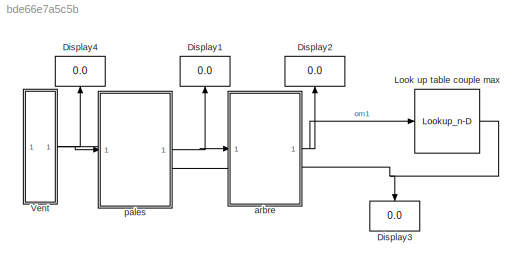
MODEL slx_bde66e7a5c5b
KIND model
CONFIG AbsTol = auto
CONFIG EnableMultiTasking = off
CONFIG FixedStep = auto
CONFIG MaxStep = auto
CONFIG MinStep = auto
CONFIG RelTol = 1e-3
CONFIG SampleTimeConstraint = Unconstrained
CONFIG SolverName = VariableStepAuto
CONFIG StartTime = 0.0
CONFIG StopTime = 10
BLOCK [Display] Display1
  Decimation = 1
  NameLocation = right
BLOCK [Display] Display2
  Decimation = 1
  NameLocation = right
BLOCK [Display] Display3
  Decimation = 1
  NameLocation = left
BLOCK [Display] Display4
  Decimation = 1
  NameLocation = right
BLOCK [Lookup_n-D] Look up table couple max
  BreakpointsForDimension1 = temp
  InputPortMap = u0
  InternalRulePriority = Speed
  NameLocation = top
  NumberOfTableDimensions = 1
  RndMeth = Simplest
  Table = cmaxfit
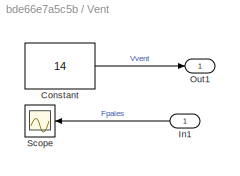
BLOCK [SubSystem] Vent
  PortSchema = {"entries":[{"content":{"sides":[{"content":{"connectorIds":[]},"type":"ConnectorPlacement.EquallySpacedRectSide","uuid":"be9e5db0-62db-41cd-9655-d6d790779573"},{"content":{"connectorIds":["Out1","In1"],"side":"RIGHT"},"type":"ConnectorPlacement.EquallySpacedRectSide","uuid":"b5e788b3-1e5f-4899-a162-7a564b67bc63"},{"content":{"connectorIds":[],"side":"TOP"},"type":"ConnectorPlacement.EquallySpaced...<+241ch>
BLOCK [Constant] Vent/Constant
  Value = 14
BLOCK [Inport] Vent/In1
  IconDisplay = Signal name
BLOCK [Outport] Vent/Out1
  IconDisplay = Signal name
BLOCK [Scope] Vent/Scope
  Floating = off
  NameLocation = top
  NumInputPorts = 1
  ScopeSpecificationString = Simulink.scopes.TimeScopeBlockCfg('CurrentConfiguration', extmgr.ConfigurationSet(extmgr.Configuration('Core','General UI',true),extmgr.Configuration('Core','Source UI',true),extmgr.Configuration('Sources','WiredSimulink',true),extmgr.Configuration('Visuals','Time Domain',true),extmgr.Configuration('Tools','Plot Navigation',true),extmgr.Configuration('Tools','Measurements',true)),'Version','2022a'...<+1ch>
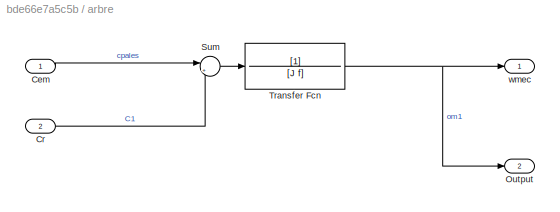
BLOCK [SubSystem] arbre
  PortSchema = {"entries":[{"content":{"sides":[{"content":{"connectorIds":["In1","Out2"]},"type":"ConnectorPlacement.EquallySpacedRectSide","uuid":"b8908f99-787f-4ebd-a8c4-361ef654133e"},{"content":{"connectorIds":["Out1","In2"],"side":"RIGHT"},"type":"ConnectorPlacement.EquallySpacedRectSide","uuid":"e7049b46-0747-4182-8580-458ffa90f1c3"},{"content":{"connectorIds":[],"side":"TOP"},"type":"ConnectorPlacement.E...<+253ch>
BLOCK [Inport] arbre/Cem
  IconDisplay = Signal name
BLOCK [Inport] arbre/Cr
  IconDisplay = Signal name
  Port = 2
BLOCK [Outport] arbre/Output
  IconDisplay = Signal name
  Port = 2
BLOCK [Sum] arbre/Sum
  Inputs = |+-
BLOCK [TransferFcn] arbre/Transfer Fcn
  Denominator = [J f]
BLOCK [Outport] arbre/wmec
  IconDisplay = Signal name
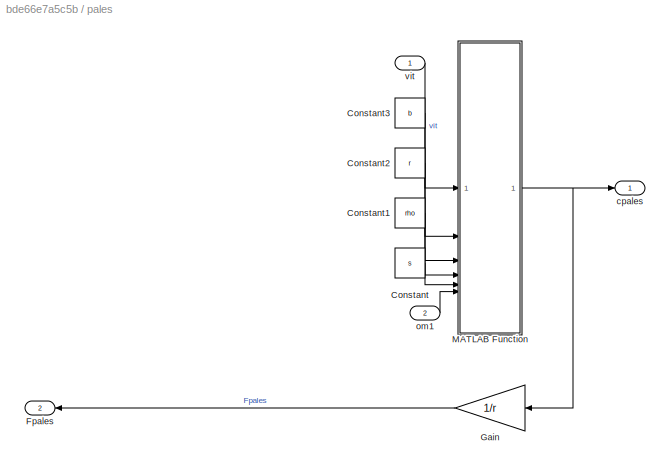
BLOCK [SubSystem] pales
  PortSchema = {"entries":[{"content":{"sides":[{"content":{"connectorIds":["In1","Out2"]},"type":"ConnectorPlacement.EquallySpacedRectSide","uuid":"2ecec5eb-5bb6-4f05-bbbb-1a51ae98f814"},{"content":{"connectorIds":["Out1","In2"],"side":"RIGHT"},"type":"ConnectorPlacement.EquallySpacedRectSide","uuid":"ddc3d36f-31b1-43d5-b617-6997f76d08f1"},{"content":{"connectorIds":[],"side":"TOP"},"type":"ConnectorPlacement.E...<+253ch>
BLOCK [Constant] pales/Constant
  Value = s
BLOCK [Constant] pales/Constant1
  Value = rho
BLOCK [Constant] pales/Constant2
  Value = r
BLOCK [Constant] pales/Constant3
  Value = b
BLOCK [Outport] pales/Fpales
  Port = 2
BLOCK [Gain] pales/Gain
  Gain = 1/r
  NameLocation = top
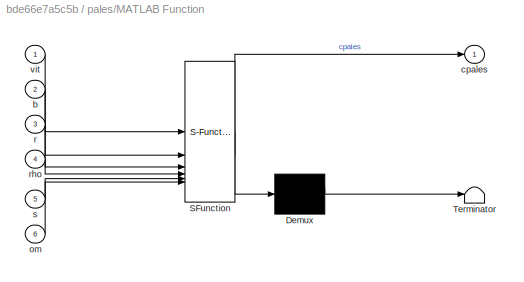
BLOCK [SubSystem] pales/MATLAB Function
  ErrorFcn = Stateflow.Translate.translate
  PermitHierarchicalResolution = ExplicitOnly
  SFBlockType = MATLAB Function
  TreatAsAtomicUnit = on
BLOCK [Demux] pales/MATLAB Function/ Demux 
  Outputs = 1
BLOCK [S-Function] pales/MATLAB Function/ SFunction 
  EnableBusSupport = on
  FunctionName = sf_sfun
  PortCounts = [6 2]
  SFcnIsStateOwnerBlock = off
  SFunctionDeploymentMode = off
  Tag = Stateflow S-Function 2
BLOCK [Terminator] pales/MATLAB Function/ Terminator 
BLOCK [Inport] pales/MATLAB Function/b
  Port = 2
BLOCK [Outport] pales/MATLAB Function/cpales
BLOCK [Inport] pales/MATLAB Function/om
  Port = 6
BLOCK [Inport] pales/MATLAB Function/r
  Port = 3
BLOCK [Inport] pales/MATLAB Function/rho
  Port = 4
BLOCK [Inport] pales/MATLAB Function/s
  Port = 5
BLOCK [Inport] pales/MATLAB Function/vit
BLOCK [Outport] pales/cpales
BLOCK [Inport] pales/om1
  Port = 2
BLOCK [Inport] pales/vit
NET Look up table couple max:1 -> Display3:1, arbre:2
LINE Vent/Constant:1 -> Vent/Out1:1
LINE Vent/In1:1 -> Vent/Scope:1
NET Vent:1 -> Display4:1, pales:1
LINE arbre/Cem:1 -> arbre/Sum:1
LINE arbre/Cr:1 -> arbre/Sum:2
LINE arbre/Sum:1 -> arbre/Transfer Fcn:1
NET arbre/Transfer Fcn:1 -> arbre/Output:1, arbre/wmec:1
NET arbre:1 -> Display2:1, Look up table couple max:1
LINE arbre:2 -> pales:2
LINE pales/Constant1:1 -> pales/MATLAB Function:4
LINE pales/Constant2:1 -> pales/MATLAB Function:3
LINE pales/Constant3:1 -> pales/MATLAB Function:2
LINE pales/Constant:1 -> pales/MATLAB Function:5
LINE pales/Gain:1 -> pales/Fpales:1
NET pales/MATLAB Function:1 -> pales/Gain:1, pales/cpales:1
LINE pales/om1:1 -> pales/MATLAB Function:6
LINE pales/vit:1 -> pales/MATLAB Function:1
NET pales:1 -> Display1:1, arbre:1
LINE pales:2 -> Vent:1
note: NET lines group one-source signal fan-out (src -> all destinations, sorted); 1:1 wires keep LINE
CHART pales/MATLAB Function states=1 transitions=1
  STATE_LABEL 'eML_blk_kernel()'
  STATE_LABEL "SCRIPT:\nfunction cpales = fcn(vit,b,r,rho,s,om)\n\n    lamb=r*om/vit;\n  \n    if lamb==0    % Pour éviter d'avoir une division par zero par la suite\n        lamb=0.001;\n    end\n        lamb1=1/((1/(lamb+0.089*b))-(0.035/(b^3+1)));\n        Cp=0.5*(116/lamb1-0.4*(b-5))*exp(-16.5/lamb1);\n        Ct=Cp/lamb;\n        cpales=0.5*rho*Ct*r*s*vit^2;\n\n\n\n\n\nend"
CHART  states=0 transitions=0
